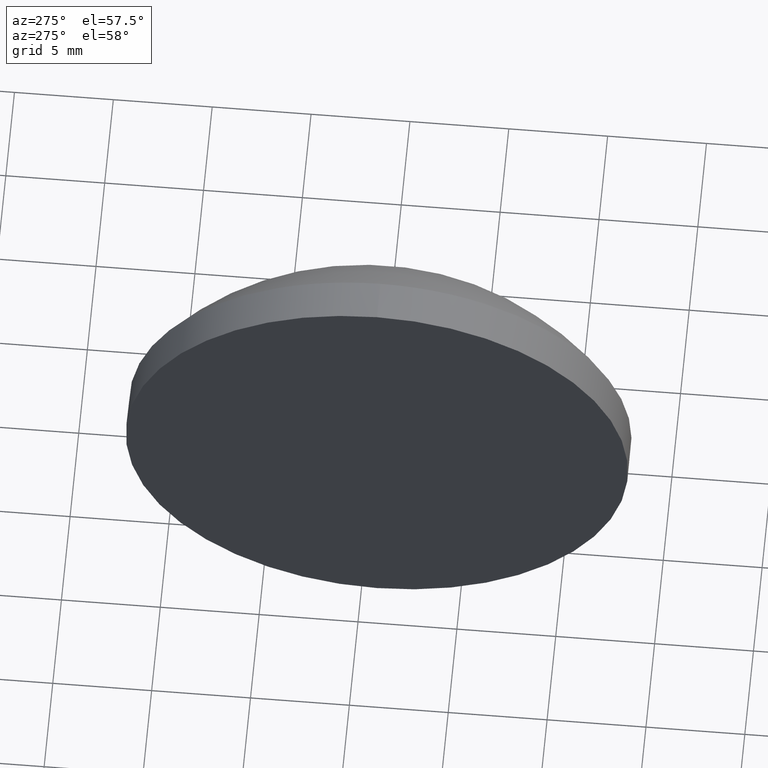
[diagram: clean part render]
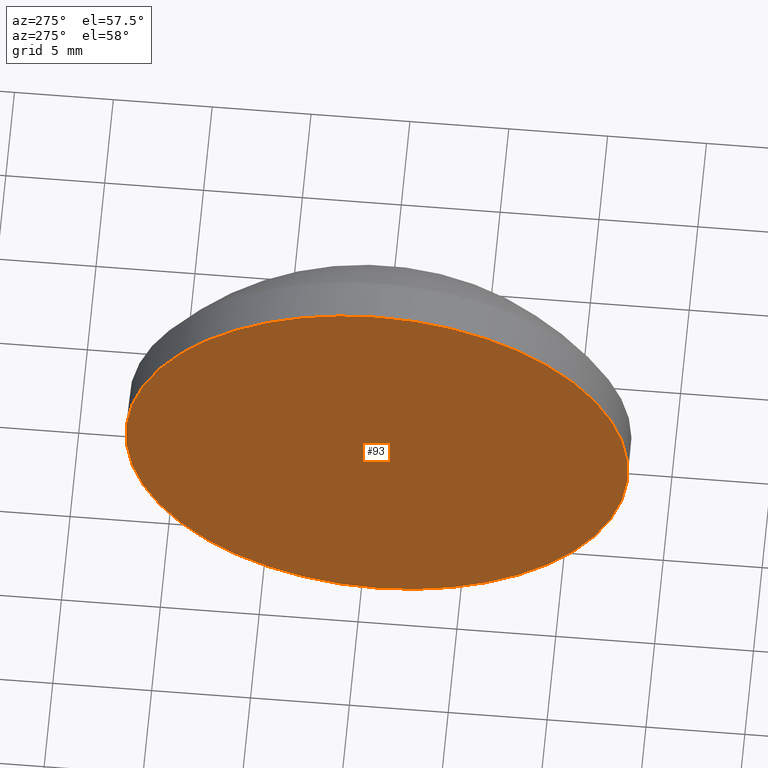
[diagram: same view with one face highlighted and labeled with its STEP entity id]
A machine part, auxiliary view. The second image highlights one B-rep face of the part: STEP entity #93.
In plain terms, the highlighted planar face has unit normal (1, 0, 0).
Its self-contained STEP definition (entity closure, byte-faithful):
#6 = CARTESIAN_POINT ( 'NONE',  ( 526.7403345451293700, 109.1985540701067800, 0.0000000000000000000 ) ) ;
#7 = CARTESIAN_POINT ( 'NONE',  ( 526.7403345451293700, 109.1985540701067800, -12.70000000000000300 ) ) ;
#16 = DIRECTION ( 'NONE',  ( 0.0000000000000000000, 0.0000000000000000000, -1.000000000000000000 ) ) ;
#29 = DIRECTION ( 'NONE',  ( 0.0000000000000000000, 0.0000000000000000000, 1.000000000000000000 ) ) ;
#39 = EDGE_CURVE ( 'NONE', #184, #104, #161, .T. ) ;
#50 = AXIS2_PLACEMENT_3D ( 'NONE', #89, #91, #16 ) ;
#54 = FACE_OUTER_BOUND ( 'NONE', #64, .T. ) ;
#59 = AXIS2_PLACEMENT_3D ( 'NONE', #180, #154, #181 ) ;
#61 = DIRECTION ( 'NONE',  ( -1.000000000000000000, -0.0000000000000000000, -0.0000000000000000000 ) ) ;
#64 = EDGE_LOOP ( 'NONE', ( #95, #108 ) ) ;
#65 = PLANE ( 'NONE',  #50 ) ;
#89 = CARTESIAN_POINT ( 'NONE',  ( 526.7403345451293700, 109.1985540701067800, 0.0000000000000000000 ) ) ;
#91 = DIRECTION ( 'NONE',  ( 1.000000000000000000, 0.0000000000000000000, 0.0000000000000000000 ) ) ;
#92 = CARTESIAN_POINT ( 'NONE',  ( 526.7403345451293700, 109.1985540701067800, 12.70000000000000300 ) ) ;
#93 = ADVANCED_FACE ( 'NONE', ( #54 ), #65, .F. ) ;
#95 = ORIENTED_EDGE ( 'NONE', *, *, #39, .T. ) ;
#104 = VERTEX_POINT ( 'NONE', #7 ) ;
#108 = ORIENTED_EDGE ( 'NONE', *, *, #146, .T. ) ;
#146 = EDGE_CURVE ( 'NONE', #104, #184, #149, .T. ) ;
#149 = CIRCLE ( 'NONE', #59, 12.70000000000000300 ) ;
#154 = DIRECTION ( 'NONE',  ( -1.000000000000000000, -0.0000000000000000000, -0.0000000000000000000 ) ) ;
#155 = AXIS2_PLACEMENT_3D ( 'NONE', #6, #61, #29 ) ;
#161 = CIRCLE ( 'NONE', #155, 12.70000000000000300 ) ;
#180 = CARTESIAN_POINT ( 'NONE',  ( 526.7403345451293700, 109.1985540701067800, 0.0000000000000000000 ) ) ;
#181 = DIRECTION ( 'NONE',  ( 0.0000000000000000000, 0.0000000000000000000, 1.000000000000000000 ) ) ;
#184 = VERTEX_POINT ( 'NONE', #92 ) ;